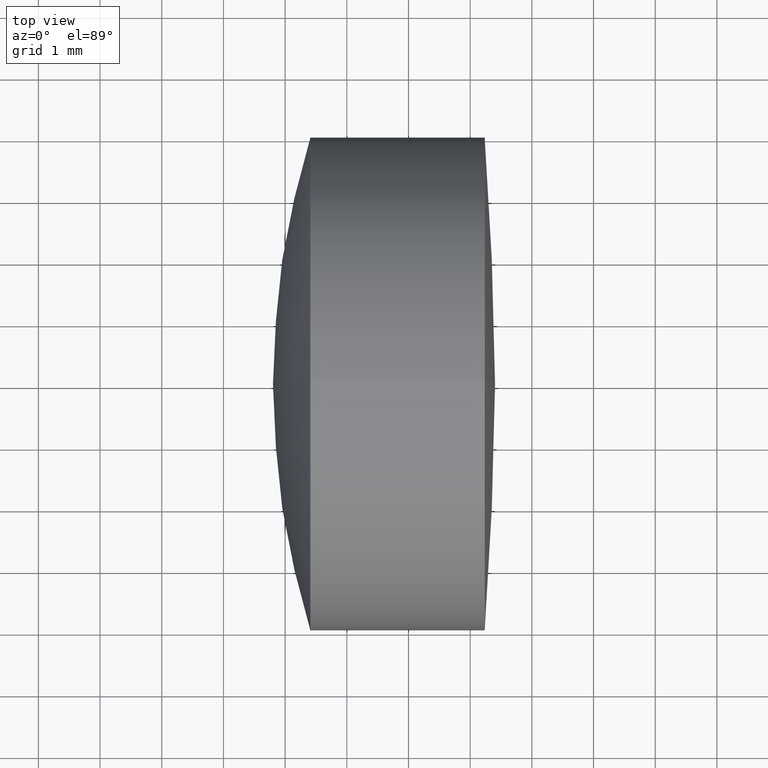
[diagram: clean part render]
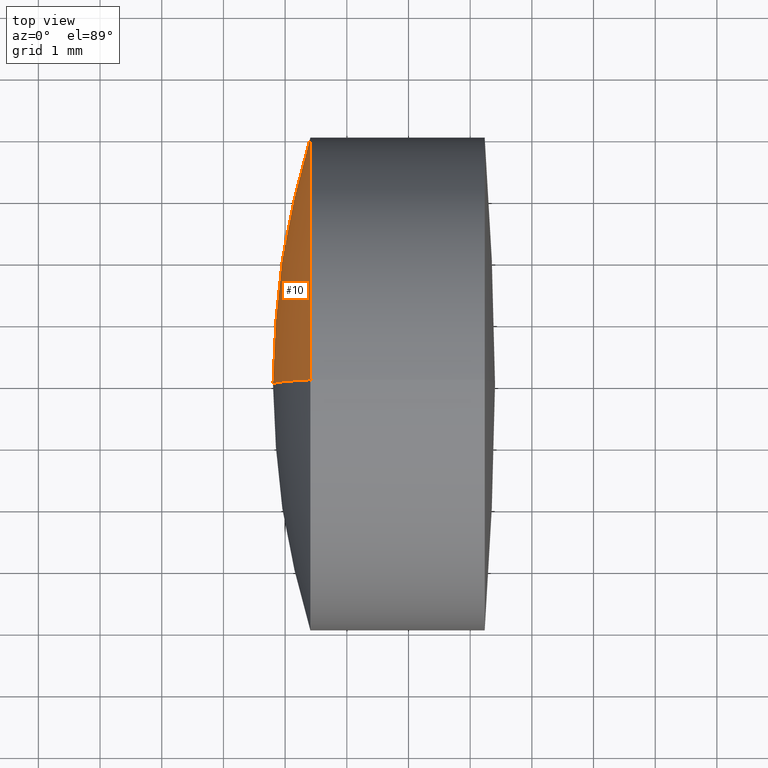
[diagram: same view with one face highlighted and labeled with its STEP entity id]
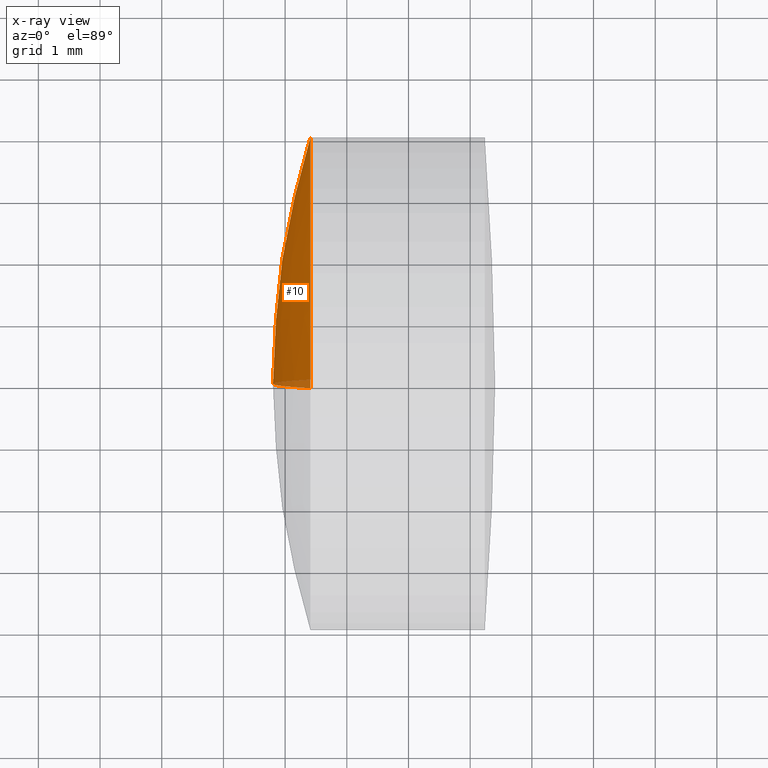
[diagram: x-ray of the same camera — body ghosted, the highlighted face saturated]
A machine part, top view. The second image highlights one B-rep face of the part: STEP entity #10.
The next image is the same camera in x-ray: the body ghosted, the highlighted face saturated — about 3% of this face is hidden behind the body in this view.
In plain terms, the highlighted spherical surface has radius 13.5 mm.
Its self-contained STEP definition (entity closure, byte-faithful):
#2 = VERTEX_POINT ( 'NONE', #168 ) ;
#10 = ADVANCED_FACE ( 'NONE', ( #23 ), #290, .T. ) ;
#23 = FACE_OUTER_BOUND ( 'NONE', #57, .T. ) ;
#35 = EDGE_CURVE ( 'NONE', #83, #2, #90, .T. ) ;
#39 = DIRECTION ( 'NONE',  ( 0.0000000000000000000, 0.0000000000000000000, -1.000000000000000000 ) ) ;
#57 = EDGE_LOOP ( 'NONE', ( #300, #96, #219 ) ) ;
#64 = EDGE_CURVE ( 'NONE', #124, #83, #283, .T. ) ;
#74 = CARTESIAN_POINT ( 'NONE',  ( 279.3030744908272700, 0.0000000000000000000, -1.429446538153924700E-015 ) ) ;
#83 = VERTEX_POINT ( 'NONE', #324 ) ;
#88 = CARTESIAN_POINT ( 'NONE',  ( 266.4092775325995600, 0.0000000000000000000, 3.999999999999999100 ) ) ;
#90 = CIRCLE ( 'NONE', #165, 13.50000000000004800 ) ;
#96 = ORIENTED_EDGE ( 'NONE', *, *, #35, .T. ) ;
#124 = VERTEX_POINT ( 'NONE', #88 ) ;
#133 = CARTESIAN_POINT ( 'NONE',  ( 266.4092775325995600, 0.0000000000000000000, 0.0000000000000000000 ) ) ;
#138 = DIRECTION ( 'NONE',  ( 0.0000000000000000000, 1.000000000000000000, 0.0000000000000000000 ) ) ;
#147 = AXIS2_PLACEMENT_3D ( 'NONE', #74, #320, #39 ) ;
#148 = CARTESIAN_POINT ( 'NONE',  ( 279.3030744908272700, 0.0000000000000000000, -1.429446538153924700E-015 ) ) ;
#165 = AXIS2_PLACEMENT_3D ( 'NONE', #148, #332, #176 ) ;
#168 = CARTESIAN_POINT ( 'NONE',  ( 265.8030744908271600, 0.0000000000000000000, -6.028099487294583000E-016 ) ) ;
#169 = AXIS2_PLACEMENT_3D ( 'NONE', #253, #138, #338 ) ;
#176 = DIRECTION ( 'NONE',  ( 0.0000000000000000000, -1.224646799147353200E-016, 1.000000000000000000 ) ) ;
#199 = CIRCLE ( 'NONE', #147, 13.50000000000004800 ) ;
#204 = DIRECTION ( 'NONE',  ( -1.000000000000000000, -0.0000000000000000000, -0.0000000000000000000 ) ) ;
#219 = ORIENTED_EDGE ( 'NONE', *, *, #232, .F. ) ;
#229 = DIRECTION ( 'NONE',  ( 0.0000000000000000000, 0.0000000000000000000, 1.000000000000000000 ) ) ;
#232 = EDGE_CURVE ( 'NONE', #124, #2, #199, .T. ) ;
#237 = AXIS2_PLACEMENT_3D ( 'NONE', #133, #204, #229 ) ;
#253 = CARTESIAN_POINT ( 'NONE',  ( 279.3030744908272700, 0.0000000000000000000, -1.429446538153924700E-015 ) ) ;
#283 = CIRCLE ( 'NONE', #237, 3.999999999999999100 ) ;
#290 = SPHERICAL_SURFACE ( 'NONE', #169, 13.50000000000004800 ) ;
#300 = ORIENTED_EDGE ( 'NONE', *, *, #64, .T. ) ;
#320 = DIRECTION ( 'NONE',  ( 0.0000000000000000000, -1.000000000000000000, 0.0000000000000000000 ) ) ;
#324 = CARTESIAN_POINT ( 'NONE',  ( 266.4092775325995600, 4.898587196589411800E-016, -4.000000000000000900 ) ) ;
#332 = DIRECTION ( 'NONE',  ( -0.0000000000000000000, 1.000000000000000000, 1.224646799147353200E-016 ) ) ;
#338 = DIRECTION ( 'NONE',  ( 0.0000000000000000000, 0.0000000000000000000, 1.000000000000000000 ) ) ;